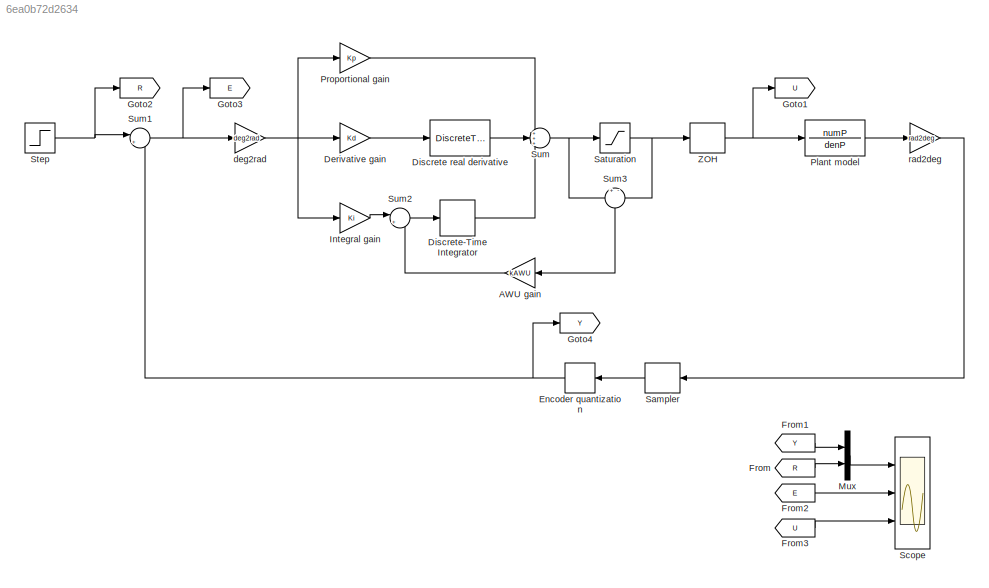
MODEL slx_6ea0b72d2634
KIND model
CONFIG AbsTol = auto
CONFIG EnableMultiTasking = on
CONFIG FixedStep = auto
CONFIG MaxStep = 0.001
CONFIG MinStep = auto
CONFIG RelTol = 1e-3
CONFIG SampleTimeConstraint = Unconstrained
CONFIG Solver = ode45
CONFIG SolverName = ode45
CONFIG StartTime = 0.0
CONFIG StopTime = 2
BLOCK [Gain] AWU gain
  Gain = kAWU
  OutDataTypeStr = Inherit: Inherit via internal rule
  ParamDataTypeStr = Inherit: Inherit via internal rule
  SaturateOnIntegerOverflow = off
BLOCK [Gain] Derivative gain
  Gain = Kd
  OutDataTypeStr = Inherit: Inherit via internal rule
  ParamDataTypeStr = Inherit: Inherit via internal rule
  SaturateOnIntegerOverflow = off
BLOCK [DiscreteTransferFcn] Discrete real derivative
  Denominator = [TL, Ts-TL]
  InputPortMap = u0
  Numerator = [1, -1]
  Ports = [1, 1]
  SampleTime = Ts
BLOCK [DiscreteIntegrator] Discrete-Time Integrator
  ICPrevOutput = DiscIntNeverNeededParam
  ICPrevScaledInput = DiscIntNeverNeededParam
  InitialConditionSetting = Auto
  Ports = [1, 1]
  SampleTime = Ts
BLOCK [Quantizer] Encoder quantization
  QuantizationInterval = enc_pulse2deg
BLOCK [From] From
  GotoTag = R
BLOCK [From] From1
  GotoTag = Y
BLOCK [From] From2
  GotoTag = E
BLOCK [From] From3
  GotoTag = U
BLOCK [Goto] Goto1
  GotoTag = U
BLOCK [Goto] Goto2
  GotoTag = R
BLOCK [Goto] Goto3
  GotoTag = E
BLOCK [Goto] Goto4
  GotoTag = Y
BLOCK [Gain] Integral gain
  Gain = Ki
  OutDataTypeStr = Inherit: Inherit via internal rule
  ParamDataTypeStr = Inherit: Inherit via internal rule
  SaturateOnIntegerOverflow = off
BLOCK [Mux] Mux
  DisplayOption = bar
  Inputs = 2
  Ports = [2, 1]
BLOCK [TransferFcn] Plant model
  Denominator = denP
  Numerator = numP
BLOCK [Gain] Proportional gain
  Gain = Kp
  OutDataTypeStr = Inherit: Inherit via internal rule
  ParamDataTypeStr = Inherit: Inherit via internal rule
  SaturateOnIntegerOverflow = off
BLOCK [ZeroOrderHold] Sampler
  SampleTime = Ts
BLOCK [Saturate] Saturation
  InputPortMap = u0
  LowerLimit = -10
  Ports = [1, 1]
  UpperLimit = 10
BLOCK [Scope] Scope
  Floating = off
  NumInputPorts = 3
  Ports = [3]
  ScopeSpecificationString = Simulink.scopes.TimeScopeBlockCfg('CurrentConfiguration', extmgr.ConfigurationSet(extmgr.Configuration('Core','General UI',true),extmgr.Configuration('Core','Source UI',true),extmgr.Configuration('Sources','WiredSimulink',true,'DataLogging',true,'DataLoggingVariableName','simres','DataLoggingSaveFormat','StructureWithTime','DataLoggingDecimation','1','DataLoggingDecimateData',true),extmgr.Configur...<+3083ch>
BLOCK [Step] Step
  After = Ar
  SampleTime = Ts
  Time = t0r
BLOCK [Sum] Sum
  IconShape = round
  InputSameDT = off
  Inputs = +++
  OutDataTypeStr = Inherit: Inherit via internal rule
  Ports = [3, 1]
  SaturateOnIntegerOverflow = off
BLOCK [Sum] Sum1
  IconShape = round
  InputSameDT = off
  Inputs = |+-
  OutDataTypeStr = Inherit: Inherit via internal rule
  Ports = [2, 1]
  SaturateOnIntegerOverflow = off
BLOCK [Sum] Sum2
  IconShape = round
  InputSameDT = off
  Inputs = |+-
  OutDataTypeStr = Inherit: Inherit via internal rule
  Ports = [2, 1]
  SaturateOnIntegerOverflow = off
BLOCK [Sum] Sum3
  IconShape = round
  InputSameDT = off
  Inputs = +-
  OutDataTypeStr = Inherit: Inherit via internal rule
  Ports = [2, 1]
  SaturateOnIntegerOverflow = off
BLOCK [ZeroOrderHold] ZOH
  SampleTime = Ts
BLOCK [Gain] deg2rad
  Gain = deg2rad
  OutDataTypeStr = Inherit: Inherit via internal rule
  ParamDataTypeStr = Inherit: Inherit via internal rule
  SaturateOnIntegerOverflow = off
BLOCK [Gain] rad2deg
  Gain = rad2deg
  OutDataTypeStr = Inherit: Inherit via internal rule
  ParamDataTypeStr = Inherit: Inherit via internal rule
  SaturateOnIntegerOverflow = off
LINE AWU gain:1 -> Sum2:2
LINE Derivative gain:1 -> Discrete real derivative:1
LINE Discrete real derivative:1 -> Sum:2
LINE Discrete-Time Integrator:1 -> Sum:3
NET Encoder quantization:1 -> Goto4:1, Sum1:2
LINE From1:1 -> Mux:1
LINE From2:1 -> Scope:2
LINE From3:1 -> Scope:3
LINE From:1 -> Mux:2
LINE Integral gain:1 -> Sum2:1
LINE Mux:1 -> Scope:1
LINE Plant model:1 -> rad2deg:1
LINE Proportional gain:1 -> Sum:1
LINE Sampler:1 -> Encoder quantization:1
NET Saturation:1 -> Sum3:2, ZOH:1
NET Step:1 -> Goto2:1, Sum1:1
NET Sum1:1 -> Goto3:1, deg2rad:1
LINE Sum2:1 -> Discrete-Time Integrator:1
LINE Sum3:1 -> AWU gain:1
NET Sum:1 -> Saturation:1, Sum3:1
NET ZOH:1 -> Goto1:1, Plant model:1
NET deg2rad:1 -> Derivative gain:1, Integral gain:1, Proportional gain:1
LINE rad2deg:1 -> Sampler:1
note: NET lines group one-source signal fan-out (src -> all destinations, sorted); 1:1 wires keep LINE
